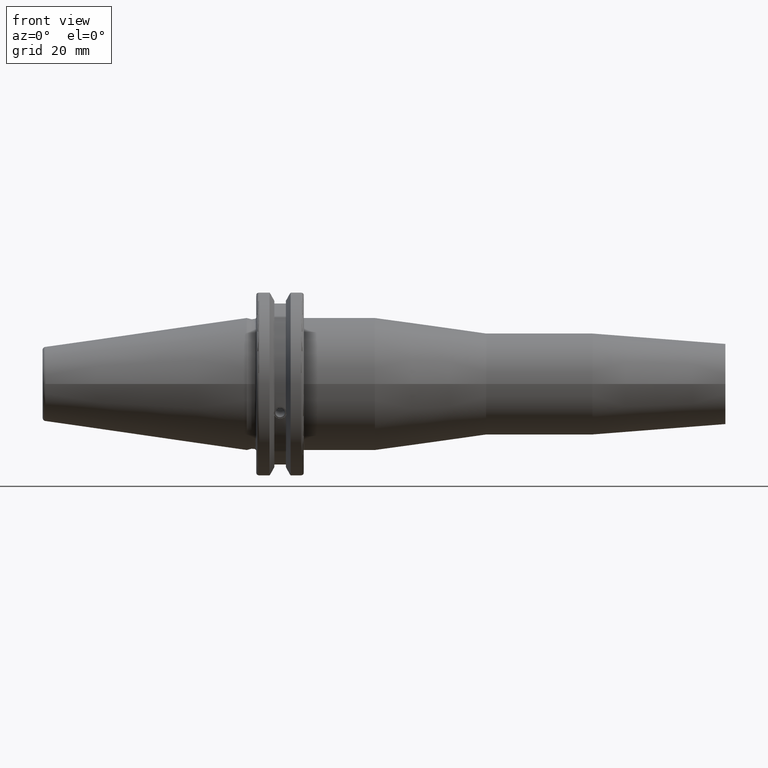
[diagram: clean part render]
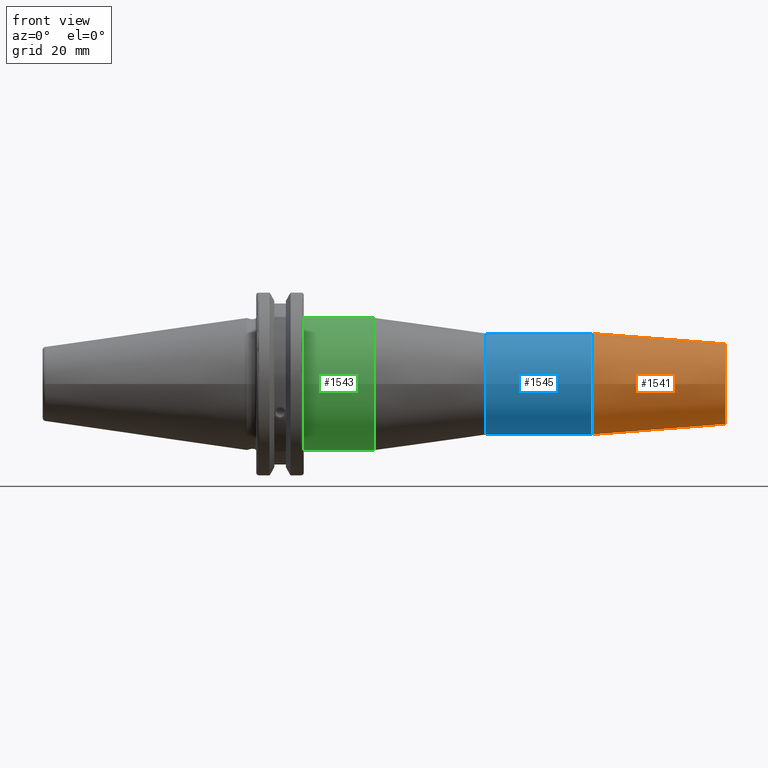
[diagram: same view with three faces highlighted in distinct colors, each labeled with its STEP entity id]
A machine part, front view with three faces highlighted in distinct colors.
Their STEP definitions:

[orange] entity #1541 — the highlighted conical surface has half-angle 4.5 deg.
#187=FACE_OUTER_BOUND('',#282,.T.);
#282=EDGE_LOOP('',(#1090,#1091,#1092,#1093));
#385=LINE('',#2427,#485);
#485=VECTOR('',#1897,15.25);
#587=CIRCLE('',#1671,13.5);
#588=CIRCLE('',#1672,17.);
#666=VERTEX_POINT('',#2424);
#667=VERTEX_POINT('',#2426);
#831=EDGE_CURVE('',#666,#666,#587,.T.);
#832=EDGE_CURVE('',#666,#667,#385,.T.);
#833=EDGE_CURVE('',#667,#667,#588,.T.);
#1090=ORIENTED_EDGE('',*,*,#831,.F.);
#1091=ORIENTED_EDGE('',*,*,#832,.T.);
#1092=ORIENTED_EDGE('',*,*,#833,.T.);
#1093=ORIENTED_EDGE('',*,*,#832,.F.);
#1516=CONICAL_SURFACE('',#1670,15.25,0.0785398163397453);
#1541=ADVANCED_FACE('',(#187),#1516,.T.);
#1670=AXIS2_PLACEMENT_3D('',#2423,#1893,#1894);
#1671=AXIS2_PLACEMENT_3D('',#2425,#1895,#1896);
#1672=AXIS2_PLACEMENT_3D('',#2428,#1898,#1899);
#1893=DIRECTION('center_axis',(-1.,0.,0.));
#1894=DIRECTION('ref_axis',(0.,1.,0.));
#1895=DIRECTION('center_axis',(1.,0.,0.));
#1896=DIRECTION('ref_axis',(0.,0.,-1.));
#1897=DIRECTION('',(-0.996917333733128,-0.0784590957278454,-9.60846804471016E-18));
#1898=DIRECTION('center_axis',(1.,0.,0.));
#1899=DIRECTION('ref_axis',(0.,0.,-1.));
#2423=CARTESIAN_POINT('Origin',(137.764141711694,0.,0.));
#2424=CARTESIAN_POINT('',(160.,-13.5,-1.65327317884893E-15));
#2425=CARTESIAN_POINT('Origin',(160.,0.,0.));
#2426=CARTESIAN_POINT('',(115.528283423389,-17.,-2.0818995585505E-15));
#2427=CARTESIAN_POINT('',(137.764141711694,-15.25,-1.86758636869971E-15));
#2428=CARTESIAN_POINT('Origin',(115.528283423389,0.,0.));

[blue] entity #1545 — the highlighted cylindrical surface (bore or boss wall) has radius 17 mm, axis along (1, 0, 0).
#150=CYLINDRICAL_SURFACE('',#1679,17.);
#191=FACE_OUTER_BOUND('',#289,.T.);
#289=EDGE_LOOP('',(#1106,#1107,#1108,#1109));
#388=LINE('',#2441,#488);
#488=VECTOR('',#1916,17.);
#588=CIRCLE('',#1672,17.);
#591=CIRCLE('',#1678,17.);
#667=VERTEX_POINT('',#2426);
#670=VERTEX_POINT('',#2437);
#833=EDGE_CURVE('',#667,#667,#588,.T.);
#837=EDGE_CURVE('',#670,#670,#591,.T.);
#839=EDGE_CURVE('',#667,#670,#388,.T.);
#1106=ORIENTED_EDGE('',*,*,#833,.F.);
#1107=ORIENTED_EDGE('',*,*,#839,.T.);
#1108=ORIENTED_EDGE('',*,*,#837,.T.);
#1109=ORIENTED_EDGE('',*,*,#839,.F.);
#1545=ADVANCED_FACE('',(#191),#150,.T.);
#1672=AXIS2_PLACEMENT_3D('',#2428,#1898,#1899);
#1678=AXIS2_PLACEMENT_3D('',#2438,#1911,#1912);
#1679=AXIS2_PLACEMENT_3D('',#2440,#1914,#1915);
#1898=DIRECTION('center_axis',(1.,0.,0.));
#1899=DIRECTION('ref_axis',(0.,0.,-1.));
#1911=DIRECTION('center_axis',(1.,0.,0.));
#1912=DIRECTION('ref_axis',(0.,0.,-1.));
#1914=DIRECTION('center_axis',(1.,0.,0.));
#1915=DIRECTION('ref_axis',(0.,1.,0.));
#1916=DIRECTION('',(-1.,0.,0.));
#2426=CARTESIAN_POINT('',(115.528283423389,-17.,-2.0818995585505E-15));
#2428=CARTESIAN_POINT('Origin',(115.528283423389,0.,0.));
#2437=CARTESIAN_POINT('',(80.,-17.,-2.0818995585505E-15));
#2438=CARTESIAN_POINT('Origin',(80.,0.,0.));
#2440=CARTESIAN_POINT('Origin',(97.7641417116944,0.,0.));
#2441=CARTESIAN_POINT('',(97.7641417116944,-17.,-2.0818995585505E-15));

[green] entity #1543 — the highlighted cylindrical surface (bore or boss wall) has radius 22.225 mm, axis along (1, 0, 0).
#149=CYLINDRICAL_SURFACE('',#1674,22.225);
#189=FACE_OUTER_BOUND('',#287,.T.);
#287=EDGE_LOOP('',(#1098,#1099,#1100,#1101));
#386=LINE('',#2434,#486);
#486=VECTOR('',#1906,22.225);
#589=CIRCLE('',#1675,22.225);
#590=CIRCLE('',#1676,22.225);
#668=VERTEX_POINT('',#2431);
#669=VERTEX_POINT('',#2433);
#834=EDGE_CURVE('',#668,#668,#589,.T.);
#835=EDGE_CURVE('',#668,#669,#386,.T.);
#836=EDGE_CURVE('',#669,#669,#590,.T.);
#1098=ORIENTED_EDGE('',*,*,#834,.F.);
#1099=ORIENTED_EDGE('',*,*,#835,.T.);
#1100=ORIENTED_EDGE('',*,*,#836,.F.);
#1101=ORIENTED_EDGE('',*,*,#835,.F.);
#1543=ADVANCED_FACE('',(#189),#149,.T.);
#1674=AXIS2_PLACEMENT_3D('',#2430,#1902,#1903);
#1675=AXIS2_PLACEMENT_3D('',#2432,#1904,#1905);
#1676=AXIS2_PLACEMENT_3D('',#2435,#1907,#1908);
#1902=DIRECTION('center_axis',(1.,0.,0.));
#1903=DIRECTION('ref_axis',(0.,1.,0.));
#1904=DIRECTION('center_axis',(1.,0.,0.));
#1905=DIRECTION('ref_axis',(0.,0.,-1.));
#1906=DIRECTION('',(-1.,0.,0.));
#1907=DIRECTION('center_axis',(-1.,0.,0.));
#1908=DIRECTION('ref_axis',(0.,1.,0.));
#2430=CARTESIAN_POINT('Origin',(30.9360966002713,0.,0.));
#2431=CARTESIAN_POINT('',(42.8221932005425,-22.225,-2.72177751110499E-15));
#2432=CARTESIAN_POINT('Origin',(42.8221932005425,0.,0.));
#2433=CARTESIAN_POINT('',(19.05,-22.225,-2.72177751110499E-15));
#2434=CARTESIAN_POINT('',(30.9360966002713,-22.225,-2.72177751110499E-15));
#2435=CARTESIAN_POINT('Origin',(19.05,0.,0.));